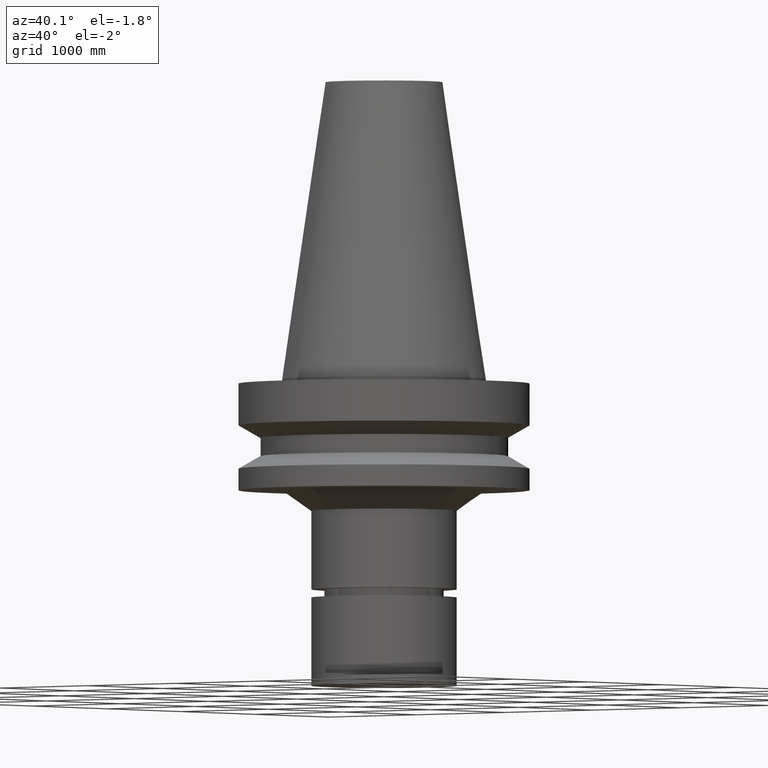
[diagram: clean part render]
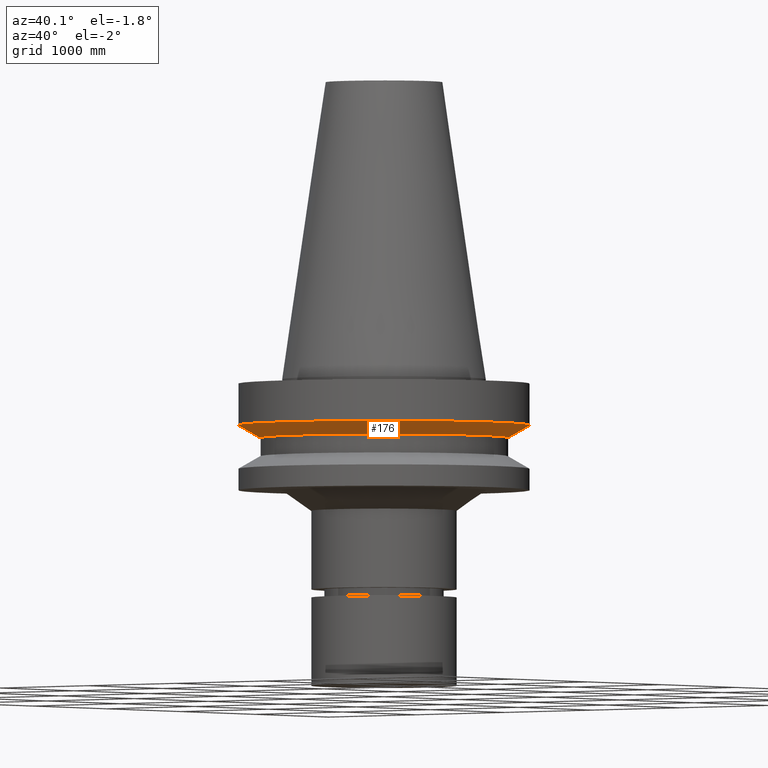
[diagram: same view with one face highlighted and labeled with its STEP entity id]
A machine part, auxiliary view. The second image highlights one B-rep face of the part: STEP entity #176.
In plain terms, the highlighted conical surface has half-angle 60 deg.
Its self-contained STEP definition (entity closure, byte-faithful):
#99=EDGE_CURVE('Unnamed[1]',#240,#240,#241,.T.);
#112=EDGE_CURVE('Unnamed[1]',#259,#259,#260,.T.);
#176=ADVANCED_FACE('Unnamed[1]',(#355,#356),#357,.T.);
#240=VERTEX_POINT('',#425);
#241=CIRCLE('',#426,50.0);
#259=VERTEX_POINT('',#450);
#260=CIRCLE('',#451,42.5);
#355=FACE_BOUND('',#568,.T.);
#356=FACE_BOUND('',#569,.T.);
#357=CONICAL_SURFACE('',#570,46.25,1.04719755108882);
#425=CARTESIAN_POINT('',(9.61347737330674E-016,50.0,-15.7));
#426=AXIS2_PLACEMENT_3D('',#625,#626,#627);
#450=CARTESIAN_POINT('',(1.2264915470779E-015,42.5,-20.03012702));
#451=AXIS2_PLACEMENT_3D('',#645,#646,#647);
#568=EDGE_LOOP('',(#750));
#569=EDGE_LOOP('',(#751));
#570=AXIS2_PLACEMENT_3D('',#752,#753,#754);
#625=CARTESIAN_POINT('',(9.61347737330675E-016,1.29939598424774E-014,-15.7));
#626=DIRECTION('',(-6.12323399573677E-017,1.40684069917098E-019,1.0));
#627=DIRECTION('',(-4.81853831597521E-033,1.0,-1.40684069917098E-019));
#645=CARTESIAN_POINT('',(1.2264915470779E-015,1.29933506625849E-014,-20.03012702));
#646=DIRECTION('',(-6.12323399573677E-017,1.40684069970318E-019,1.0));
#647=DIRECTION('',(-4.81853831596719E-033,1.0,-1.40684069970318E-019));
#750=ORIENTED_EDGE('',*,*,#99,.F.);
#751=ORIENTED_EDGE('',*,*,#112,.T.);
#752=CARTESIAN_POINT('',(1.09391964220429E-015,1.29936552525312E-014,-17.86506351));
#753=DIRECTION('',(-6.12323399573677E-017,1.40684069941551E-019,1.0));
#754=DIRECTION('',(-4.81853831597153E-033,1.0,-1.40684069941551E-019));